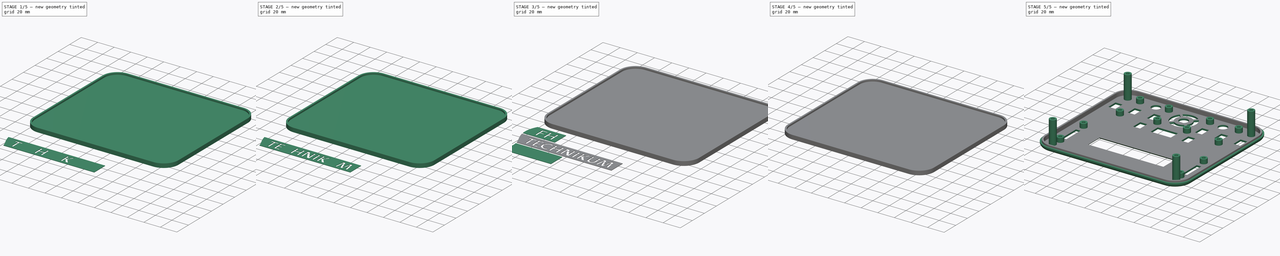
[diagram: build sequence overview — one tinted view per stage of 5, left to right]
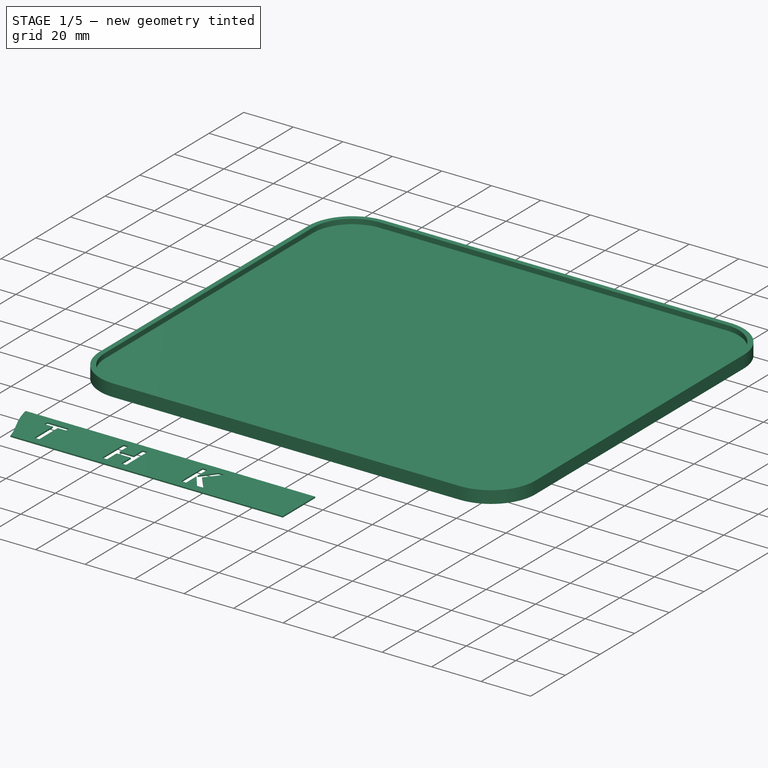
[diagram: stage 1 of 5 — iso view after this stage's code; geometry added in this stage tinted green]
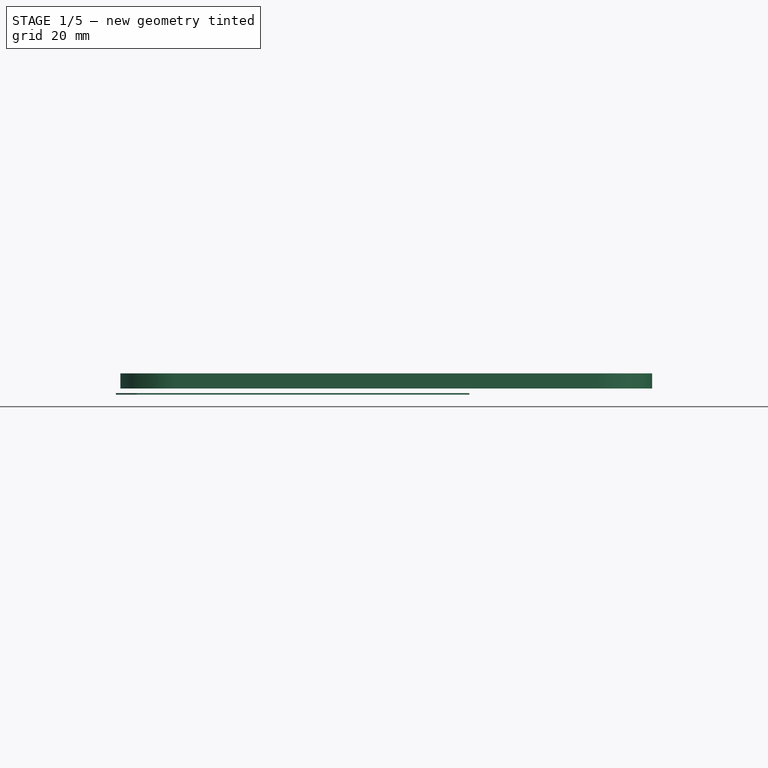
[diagram: stage 1 of 5 — front view after this stage's code; geometry added in this stage tinted green]
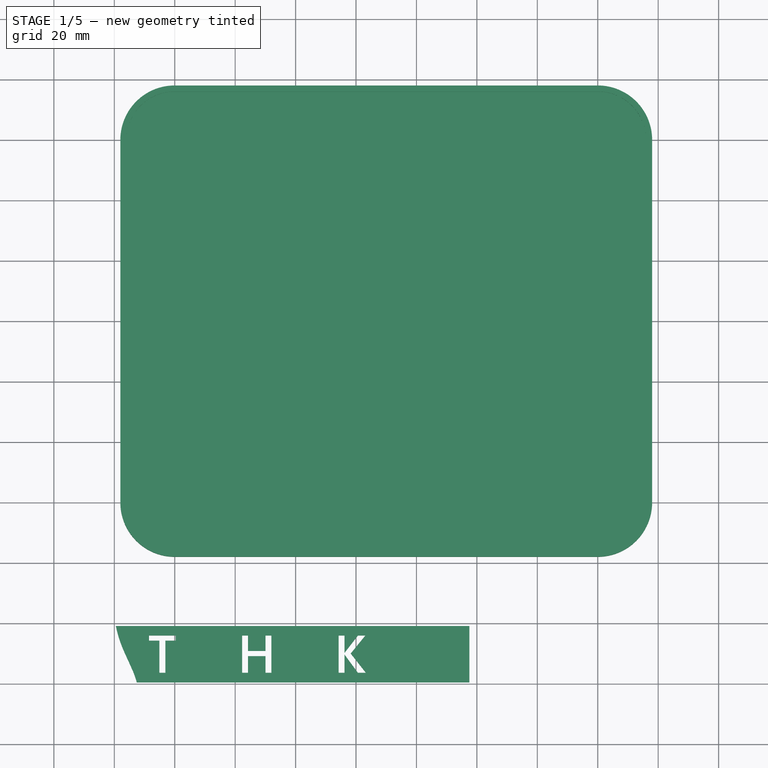
[diagram: stage 1 of 5 — top view after this stage's code; geometry added in this stage tinted green]
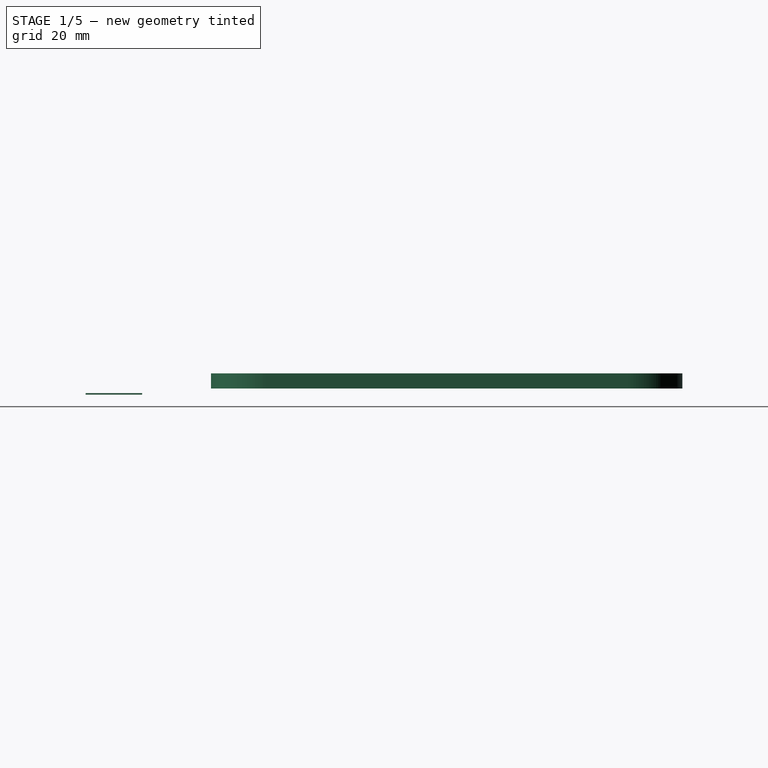
[diagram: stage 1 of 5 — right view after this stage's code; geometry added in this stage tinted green]
FCSTD DOCUMENT  (FreeCAD 0.16R6706 (Git))
Label: Case_Top_2
License: All rights reserved
LicenseURL: http://en.wikipedia.org/wiki/All_rights_reserved
objects: Part::Feature×18, Part::Extrusion×18, Part::Cut×17, Sketcher::SketchObject×5, PartDesign::Pad×5, PartDesign::Fillet×3, Part::MultiFuse×3, Part::FeaturePython×1, PartDesign::Chamfer×1
note: 76 computed .brp shape members not serialized (recipe doc carries the construction recipe); baked Part::Feature solids carry a one-line shape summary decoded from their .brp

FEATURE [Sketcher::SketchObject] Sketch001
  Placement = pos=(0,0,2) rot=(0,0,1;0rad)
  sketch-geometry (4):
    g0: LineSegment StartX=2 StartY=2 StartZ=0 EndX=178 EndY=2 EndZ=0
    g1: LineSegment StartX=178 StartY=2 StartZ=0 EndX=178 EndY=158 EndZ=0
    g2: LineSegment StartX=178 StartY=158 StartZ=0 EndX=2 EndY=158 EndZ=0
    g3: LineSegment StartX=2 StartY=158 StartZ=0 EndX=2 EndY=2 EndZ=0
  constraints (12):
    c: Coincident(g0,g1)
    c: Coincident(g1,g2)
    c: Coincident(g2,g3)
    c: Coincident(g3,g0)
    c: Horizontal(g0)
    c: Horizontal(g2)
    c: Vertical(g1)
    c: Vertical(g3)
    c: DistanceX(g-1,g0) = 2
    c: DistanceY(g-1,g0) = 2
    c: DistanceX(g-1,g0) = 178
    c: DistanceY(g-1,g2) = 158
FEATURE [PartDesign::Pad] Pad001
  Length = 3
  Length2 = 100
  Placement = pos=(0,0,2) rot=(0,0,1;0rad)
  Sketch = -> Sketch001
  Type = 0
FEATURE [Part::Extrusion] Extrude001
  Base = -> Path003
  Dir = (0,0,0.5)
  Solid = false
FEATURE [Part::Extrusion] Extrude009
  Base = -> Path011
  Dir = (0,0,0.5)
  Solid = false
FEATURE [Part::Extrusion] Extrude010
  Base = -> Path012
  Dir = (0,0,0.5)
  Solid = false
FEATURE [Part::Extrusion] Extrude013
  Base = -> Path015
  Dir = (0,0,0.5)
  Solid = false
FEATURE [Part::Cut] Cut007
  Base = -> Extrude001
  Tool = -> Extrude013
FEATURE [Part::Cut] Cut008
  Base = -> Cut007
  Tool = -> Extrude009
FEATURE [Part::Cut] Cut009
  Base = -> Cut008
  Tool = -> Extrude010
FEATURE [PartDesign::Fillet] Fillet002
  Base = -> Pad001 [Edge1,Edge2,Edge5,Edge8]
  Placement = pos=(0,0,2) rot=(0,0,1;0rad)
  Radius = 18
FEATURE [Sketcher::SketchObject] Sketch004
  Placement = pos=(0,0,2) rot=(0,0,1;0rad)
  sketch-geometry (16):
    g0: LineSegment StartX=2 StartY=140 StartZ=0 EndX=2 EndY=20 EndZ=0
    g1: LineSegment StartX=20 StartY=2 StartZ=0 EndX=160 EndY=2 EndZ=0
    g2: LineSegment StartX=178 StartY=20 StartZ=0 EndX=178 EndY=140 EndZ=0
    g3: LineSegment StartX=160 StartY=158 StartZ=0 EndX=20 EndY=158 EndZ=0
    g4: LineSegment StartX=20 StartY=156 StartZ=0 EndX=160 EndY=156 EndZ=0
    g5: LineSegment StartX=176 StartY=140 StartZ=0 EndX=176 EndY=20 EndZ=0
    g6: LineSegment StartX=160 StartY=4 StartZ=0 EndX=20 EndY=4 EndZ=0
    g7: LineSegment StartX=4 StartY=20 StartZ=0 EndX=4 EndY=140 EndZ=0
    g8: ArcOfCircle CenterX=20 CenterY=20 CenterZ=0 NormalX=0 NormalY=0 NormalZ=1 Radius=18 StartAngle=3.14159 EndAngle=4.71239
    g9: ArcOfCircle CenterX=20 CenterY=20 CenterZ=0 NormalX=0 NormalY=0 NormalZ=1 Radius=16 StartAngle=3.14159 EndAngle=4.71239
    g10: ArcOfCircle CenterX=20 CenterY=140 CenterZ=0 NormalX=0 NormalY=0 NormalZ=1 Radius=16 StartAngle=1.5708 EndAngle=3.14159
    g11: ArcOfCircle CenterX=20 CenterY=140 CenterZ=0 NormalX=0 NormalY=0 NormalZ=1 Radius=18 StartAngle=1.5708 EndAngle=3.14159
    g12: ArcOfCircle CenterX=160 CenterY=140 CenterZ=0 NormalX=0 NormalY=0 NormalZ=1 Radius=16 StartAngle=0 EndAngle=1.5708
    g13: ArcOfCircle CenterX=160 CenterY=140 CenterZ=0 NormalX=0 NormalY=0 NormalZ=1 Radius=18 StartAngle=0 EndAngle=1.5708
    g14: ArcOfCircle CenterX=160 CenterY=20 CenterZ=0 NormalX=0 NormalY=0 NormalZ=1 Radius=18 StartAngle=4.71239 EndAngle=6.28319
    g15: ArcOfCircle CenterX=160 CenterY=20 CenterZ=0 NormalX=0 NormalY=0 NormalZ=1 Radius=16 StartAngle=4.71239 EndAngle=6.28319
  constraints (56):
    c: Vertical(g0)
    c: Horizontal(g1)
    c: Vertical(g2)
    c: Horizontal(g3)
    c: Horizontal(g4)
    c: Vertical(g5)
    c: Horizontal(g6)
    c: Vertical(g7)
    c: DistanceY(g-1,g0) = 20
    c: DistanceY(g-1,g7) = 20
    c: DistanceX(g-1,g6) = 20
    c: DistanceX(g-1,g1) = 20
    c: DistanceY(g-1,g1) = 2
    c: DistanceY(g-1,g6) = 4
    c: DistanceX(g-1,g0) = 2
    c: DistanceX(g-1,g7) = 4
    c: Coincident(g8,g0)
    c: Coincident(g8,g1)
    c: Radius(g8) = 18
    c: Coincident(g9,g7)
    c: Coincident(g9,g6)
    c: Radius(g9) = 16
    c: DistanceX(g-1,g6) = 160
    c: DistanceX(g-1,g1) = 160
    c: DistanceX(g-1,g3) = 160
    c: DistanceX(g-1,g4) = 160
    c: DistanceX(g-1,g3) = 20
    c: DistanceX(g-1,g4) = 20
    c: DistanceY(g-1,g0) = 140
    c: DistanceY(g-1,g7) = 140
    c: DistanceY(g-1,g5) = 20
    c: DistanceY(g-1,g2) = 20
    c: DistanceX(g-1,g5) = 176
    c: DistanceX(g-1,g2) = 178
    c: DistanceY(g-1,g5) = 140
    c: DistanceY(g-1,g2) = 140
    c: DistanceY(g-1,g3) = 158
    c: DistanceY(g-1,g4) = 156
    c: Coincident(g10,g7)
    c: Coincident(g10,g4)
    c: Radius(g10) = 16
    c: Coincident(g11,g0)
    c: Coincident(g11,g3)
    c: Radius(g11) = 18
    c: Coincident(g12,g4)
    c: Coincident(g12,g5)
    c: Radius(g12) = 16
    c: Coincident(g13,g3)
    c: Coincident(g13,g2)
    c: Radius(g13) = 18
    c: Coincident(g14,g1)
    c: Coincident(g14,g2)
    c: Radius(g14) = 18
    c: Coincident(g15,g6)
    c: Coincident(g15,g5)
    c: Radius(g15) = 16
FEATURE [PartDesign::Pad] Pad004
  Length = 5
  Length2 = 100
  Placement = pos=(0,0,2) rot=(0,0,1;0rad)
  Sketch = -> Sketch004
  Type = 0
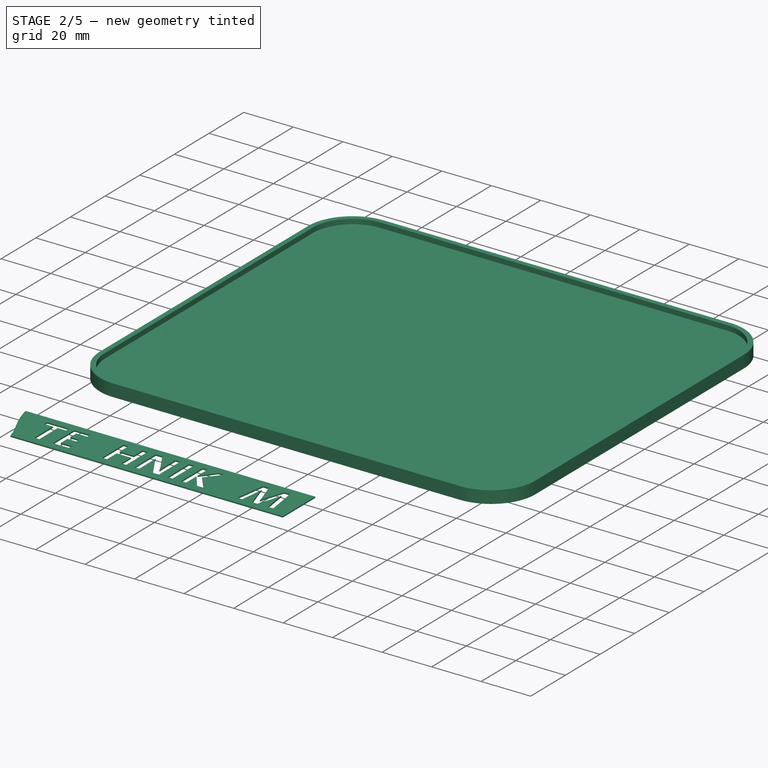
[diagram: stage 2 of 5 — iso view after this stage's code; geometry added in this stage tinted green]
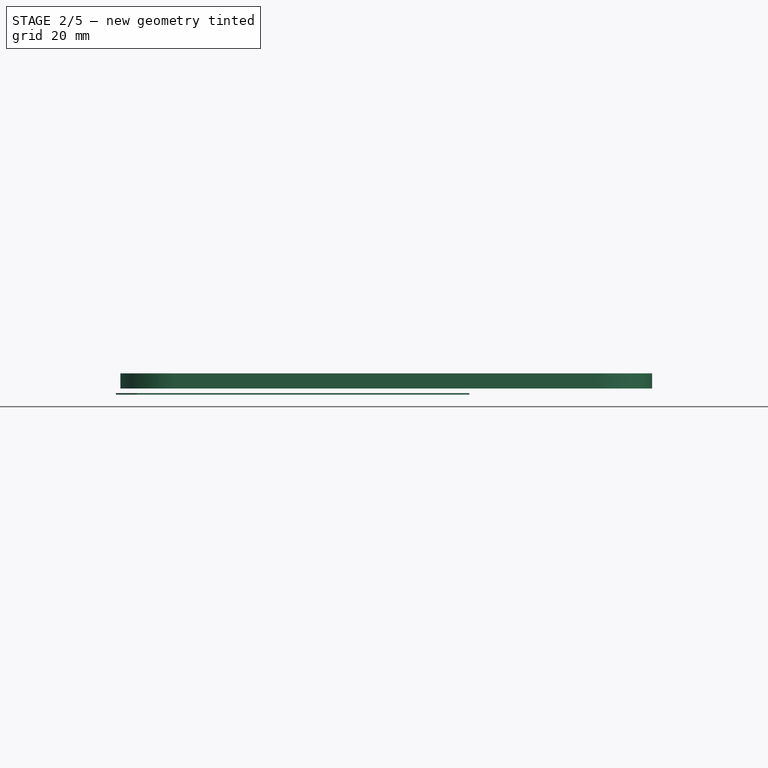
[diagram: stage 2 of 5 — front view after this stage's code; geometry added in this stage tinted green]
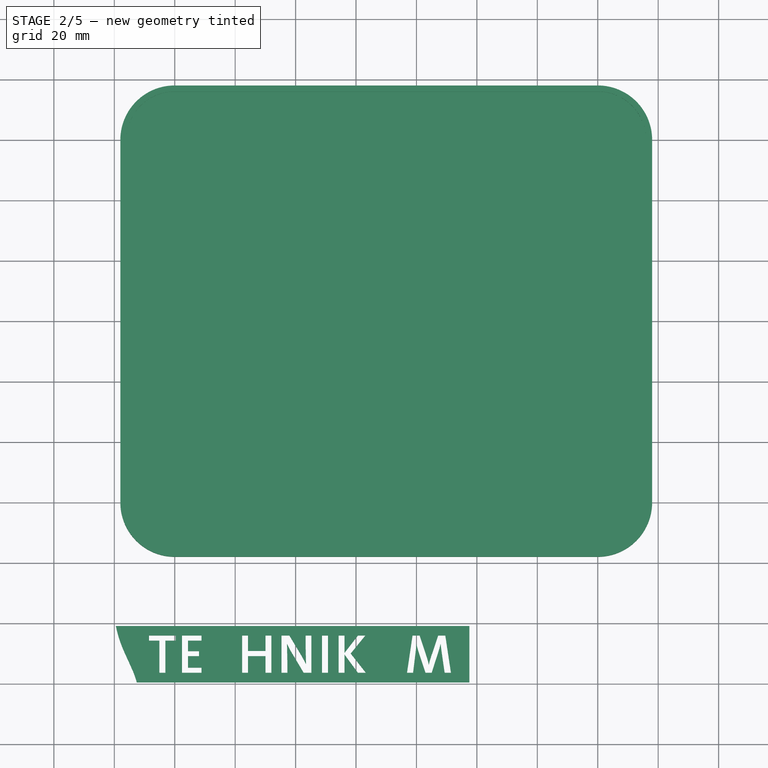
[diagram: stage 2 of 5 — top view after this stage's code; geometry added in this stage tinted green]
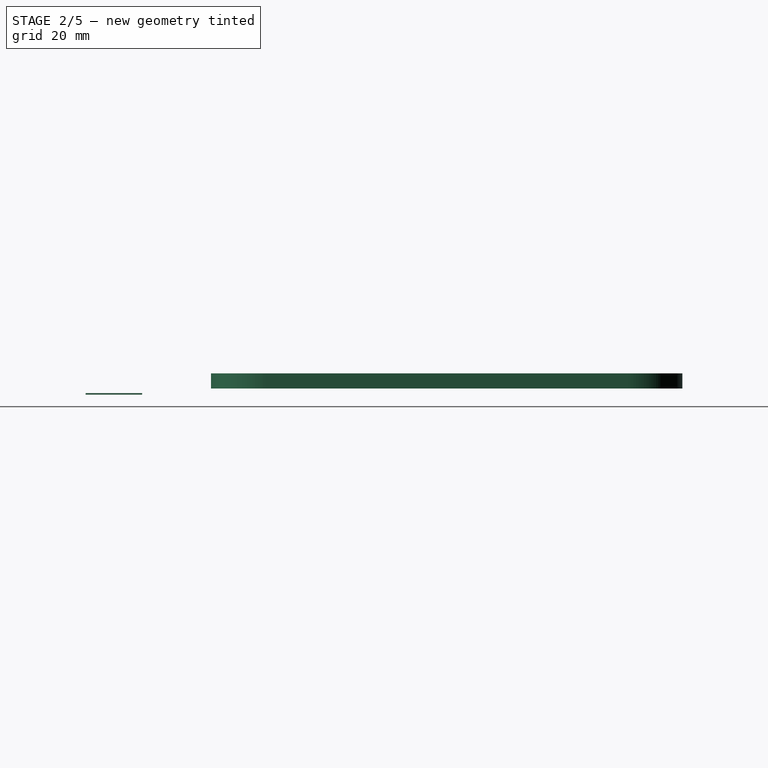
[diagram: stage 2 of 5 — right view after this stage's code; geometry added in this stage tinted green]
FEATURE [Part::Extrusion] Extrude011
  Base = -> Path013
  Dir = (0,0,0.5)
  Solid = false
FEATURE [Part::Extrusion] Extrude012
  Base = -> Path014
  Dir = (0,0,0.5)
  Solid = false
FEATURE [Part::Extrusion] Extrude014
  Base = -> Path016
  Dir = (0,0,0.5)
  Solid = false
FEATURE [Part::Extrusion] Extrude015
  Base = -> Path017
  Dir = (0,0,0.5)
  Solid = false
FEATURE [Part::Extrusion] Extrude016
  Base = -> Path018
  Dir = (0,0,0.5)
  Solid = false
FEATURE [Part::Cut] Cut010
  Base = -> Cut009
  Tool = -> Extrude011
FEATURE [Part::Cut] Cut011
  Base = -> Cut010
  Tool = -> Extrude012
FEATURE [Part::Cut] Cut012
  Base = -> Cut011
  Tool = -> Extrude014
FEATURE [Part::Cut] Cut013
  Base = -> Cut012
  Tool = -> Extrude015
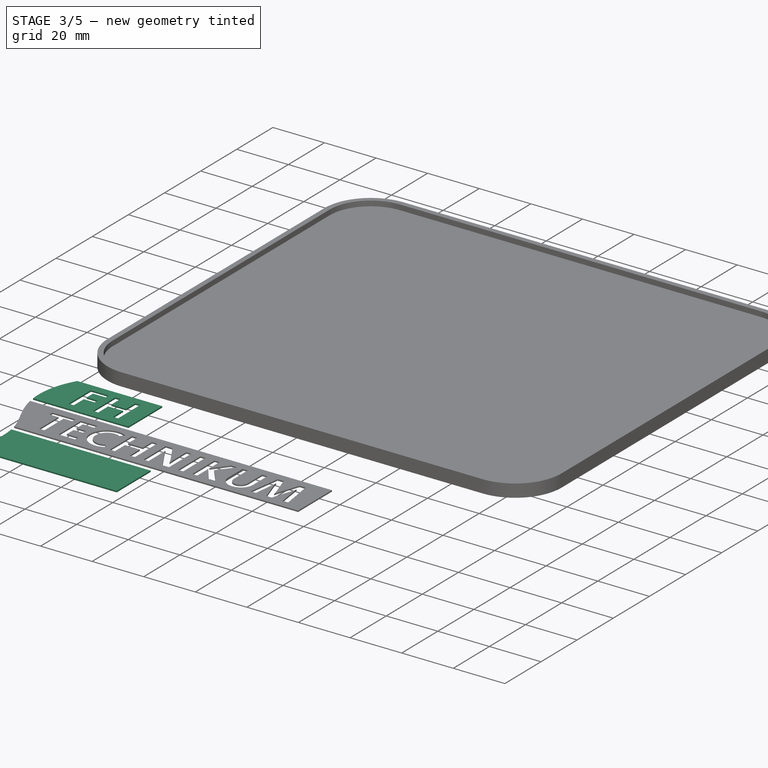
[diagram: stage 3 of 5 — iso view after this stage's code; geometry added in this stage tinted green]
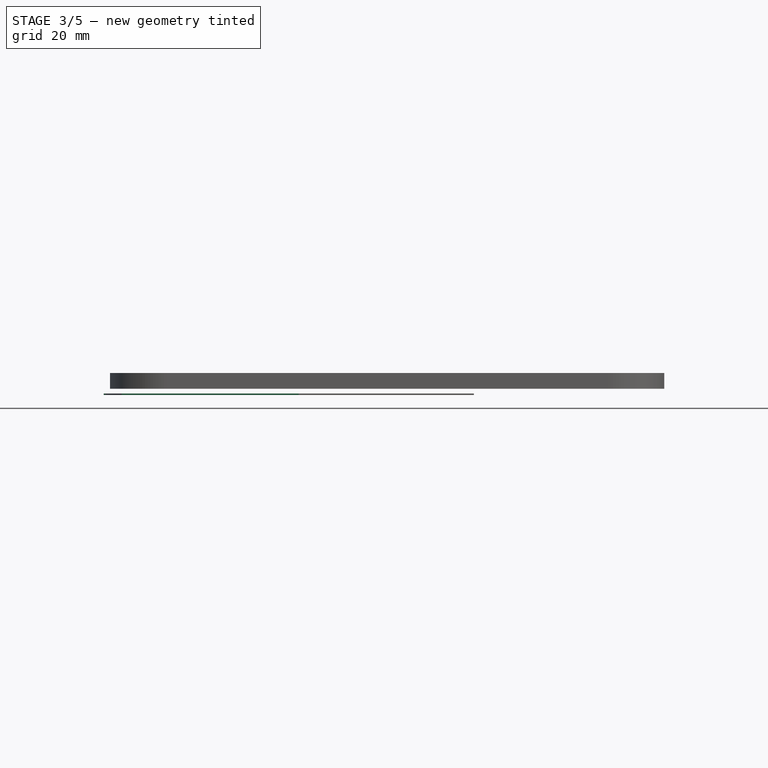
[diagram: stage 3 of 5 — front view after this stage's code; geometry added in this stage tinted green]
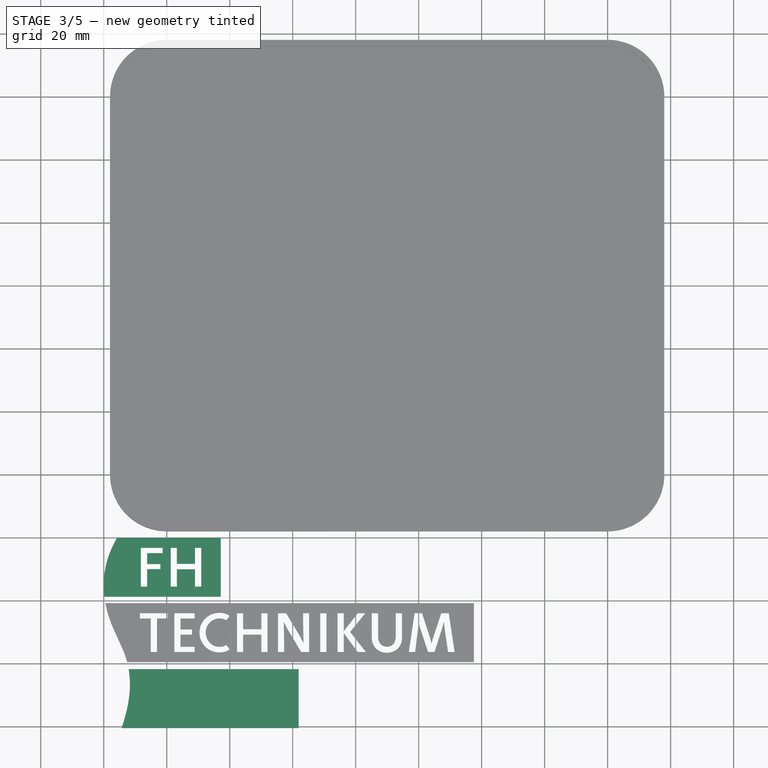
[diagram: stage 3 of 5 — top view after this stage's code; geometry added in this stage tinted green]
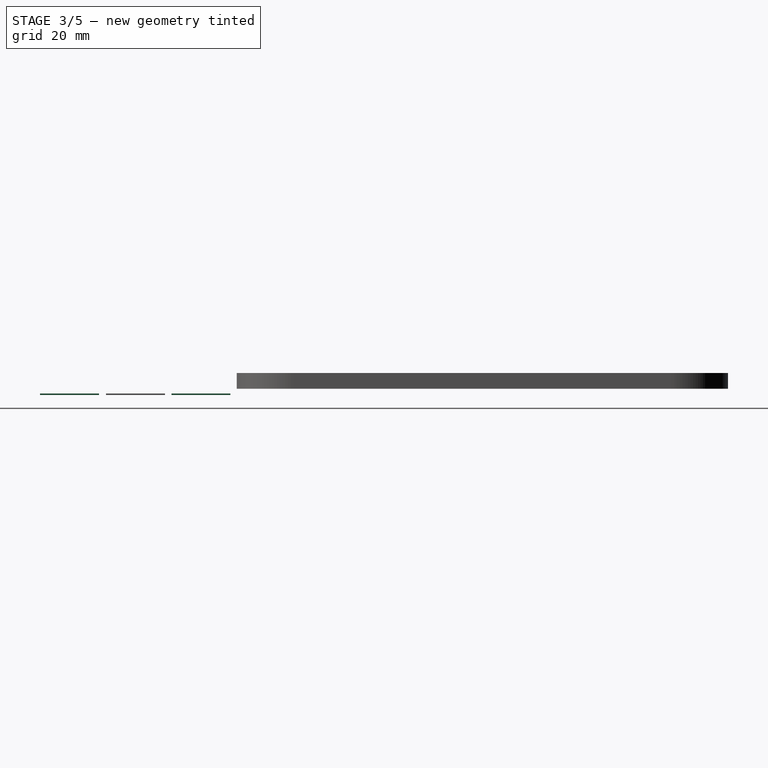
[diagram: stage 3 of 5 — right view after this stage's code; geometry added in this stage tinted green]
FEATURE [Part::Feature] Path002
  shape: bbox 37.64 x 18.73 x 6.236e-07 mm, 1 faces, 0 solids (baked)
FEATURE [Part::Feature] Path003
  shape: bbox 117 x 18.73 x 6.236e-07 mm, 1 faces, 0 solids (baked)
FEATURE [Part::Feature] Path004
  shape: bbox 56.24 x 18.73 x 6.236e-07 mm, 1 faces, 0 solids (baked)
FEATURE [Part::Feature] Path005
  shape: bbox 16.13 x 12.33 x 6.236e-07 mm, 1 faces, 0 solids (baked)
FEATURE [Part::Feature] Path006
  shape: bbox 1.971 x 12.33 x 6.236e-07 mm, 1 faces, 0 solids (baked)
FEATURE [Part::Feature] Path007
  shape: bbox 6.437 x 12.33 x 6.236e-07 mm, 1 faces, 0 solids (baked)
FEATURE [Part::Feature] Path008
  shape: bbox 9.89 x 12.33 x 6.236e-07 mm, 1 faces, 0 solids (baked)
FEATURE [Part::Feature] Path009
  shape: bbox 6.894 x 12.33 x 6.236e-07 mm, 1 faces, 0 solids (baked)
FEATURE [Part::Feature] Path010
  shape: bbox 9.691 x 12.33 x 6.236e-07 mm, 1 faces, 0 solids (baked)
FEATURE [Part::Feature] Path011
  shape: bbox 8.823 x 12.33 x 6.236e-07 mm, 1 faces, 0 solids (baked)
FEATURE [Part::Feature] Path012
  shape: bbox 9.691 x 12.33 x 6.236e-07 mm, 1 faces, 0 solids (baked)
FEATURE [Part::Feature] Path013
  shape: bbox 9.89 x 12.33 x 6.236e-07 mm, 1 faces, 0 solids (baked)
FEATURE [Part::Feature] Path014
  shape: bbox 1.969 x 12.33 x 6.236e-07 mm, 1 faces, 0 solids (baked)
FEATURE [Part::Feature] Path015
  shape: bbox 9.022 x 12.33 x 6.236e-07 mm, 1 faces, 0 solids (baked)
FEATURE [Part::Feature] Path016
  shape: bbox 14.54 x 12.33 x 6.236e-07 mm, 1 faces, 0 solids (baked)
FEATURE [Part::Feature] Path017
  shape: bbox 6.437 x 12.33 x 6.236e-07 mm, 1 faces, 0 solids (baked)
FEATURE [Part::Feature] Path018
  shape: bbox 9.6 x 12.56 x 6.236e-07 mm, 1 faces, 0 solids (baked)
FEATURE [Part::Feature] Path019
  shape: bbox 9.706 x 12.59 x 6.236e-07 mm, 1 faces, 0 solids (baked)
FEATURE [Part::Extrusion] Extrude
  Base = -> Path002
  Dir = (0,0,0.5)
  Solid = false
FEATURE [Part::Extrusion] Extrude002
  Base = -> Path004
  Dir = (0,0,0.5)
  Solid = false
FEATURE [Part::Extrusion] Extrude003
  Base = -> Path005
  Dir = (0,0,0.5)
  Solid = false
FEATURE [Part::Extrusion] Extrude007
  Base = -> Path009
  Dir = (0,0,0.5)
  Solid = false
FEATURE [Part::Extrusion] Extrude008
  Base = -> Path010
  Dir = (0,0,0.5)
  Solid = false
FEATURE [Part::Extrusion] Extrude017
  Base = -> Path019
  Dir = (0,0,0.5)
  Solid = false
FEATURE [Part::Cut] Cut002
  Base = -> Extrude
  Tool = -> Extrude008
FEATURE [Part::Cut] Cut006
  Base = -> Cut002
  Tool = -> Extrude007
FEATURE [Part::Cut] Cut014
  Base = -> Cut013
  Tool = -> Extrude016
FEATURE [Part::Cut] Cut015
  Base = -> Cut014
  Tool = -> Extrude017
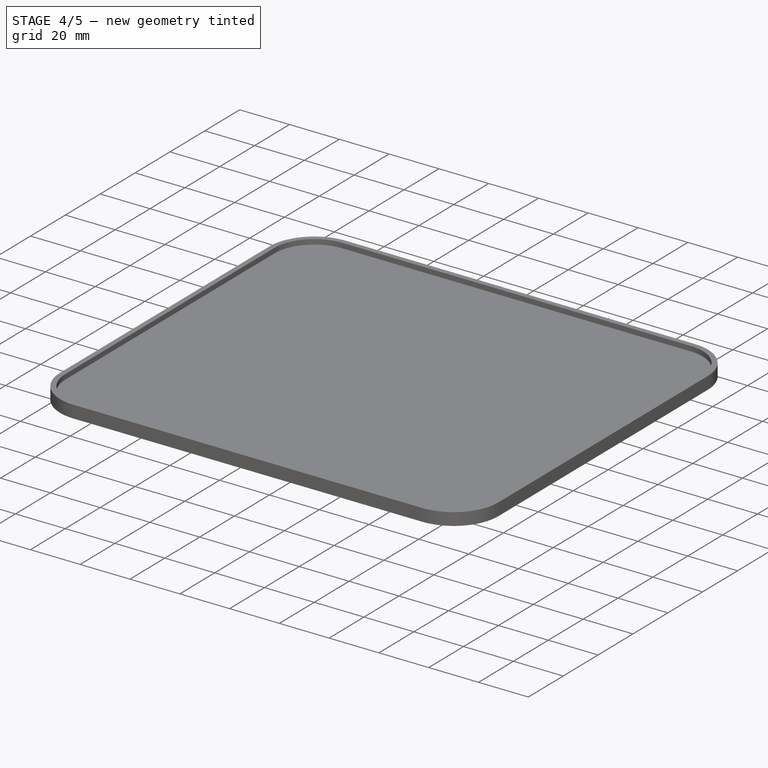
[diagram: stage 4 of 5 — iso view after this stage's code; geometry added in this stage tinted green]
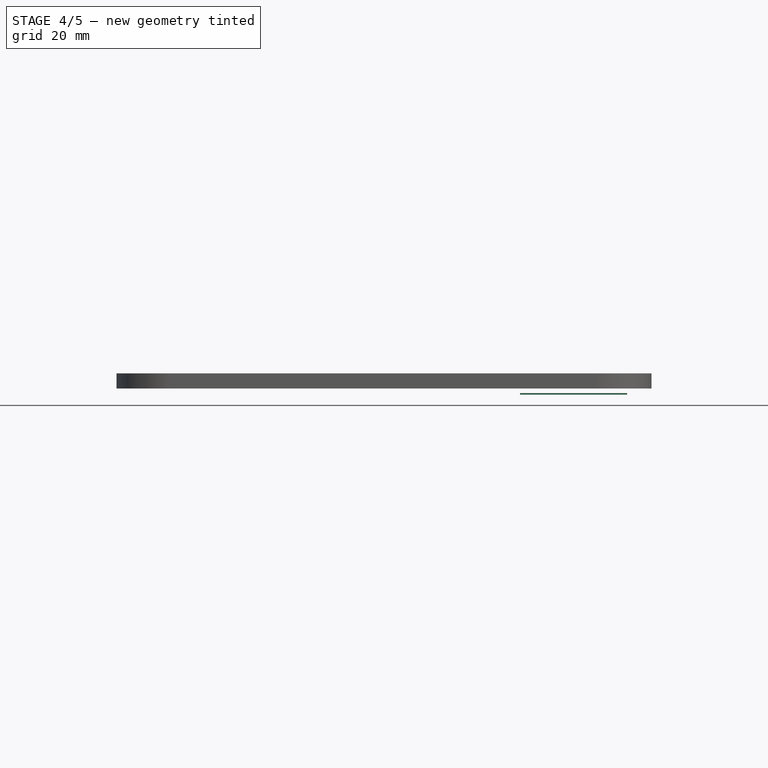
[diagram: stage 4 of 5 — front view after this stage's code; geometry added in this stage tinted green]
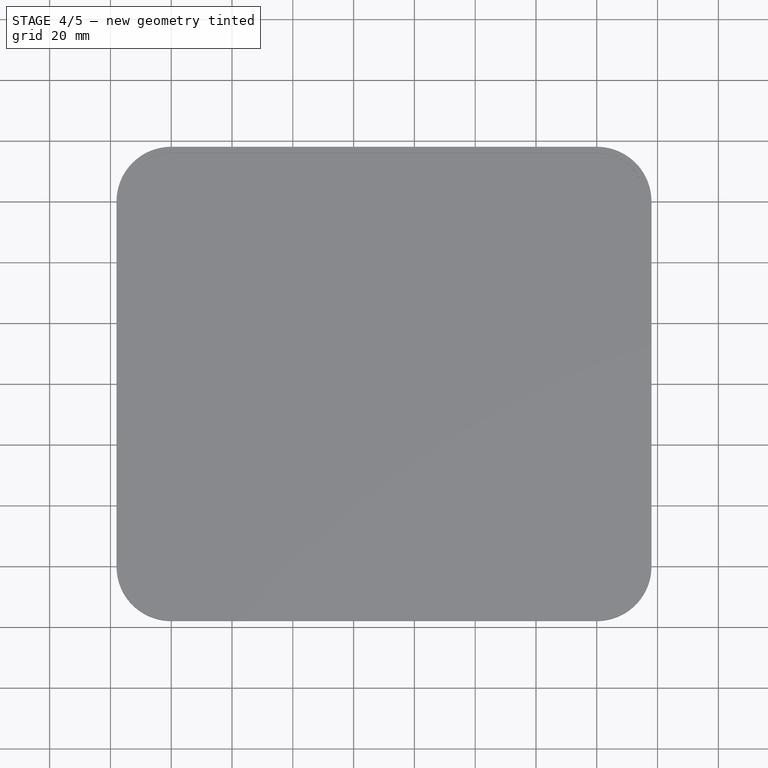
[diagram: stage 4 of 5 — top view after this stage's code; geometry added in this stage tinted green]
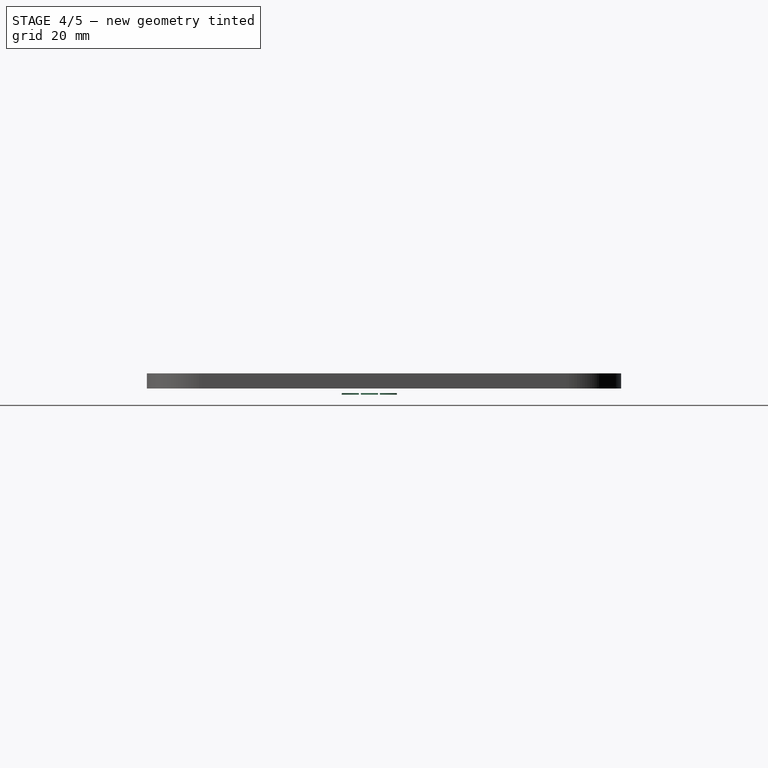
[diagram: stage 4 of 5 — right view after this stage's code; geometry added in this stage tinted green]
FEATURE [Part::Extrusion] Extrude004
  Base = -> Path006
  Dir = (0,0,0.5)
  Solid = false
FEATURE [Part::Extrusion] Extrude005
  Base = -> Path007
  Dir = (0,0,0.5)
  Solid = false
FEATURE [Part::Extrusion] Extrude006
  Base = -> Path008
  Dir = (0,0,0.5)
  Solid = false
FEATURE [Part::Cut] Cut001
  Base = -> Extrude002
  Tool = -> Extrude003
FEATURE [Part::Cut] Cut003
  Base = -> Cut001
  Tool = -> Extrude004
FEATURE [Part::Cut] Cut004
  Base = -> Cut003
  Tool = -> Extrude005
FEATURE [Part::Cut] Cut005
  Base = -> Cut004
  Tool = -> Extrude006
FEATURE [Part::MultiFuse] Fusion001  label="FH_Logo"
  Shapes = -> [Cut015,Cut005,Cut006]
FEATURE [Part::FeaturePython] Clone  label="Clone of FH_Logo"  # Draft clone (typed FeaturePython)
  Objects = -> [Fusion001]
  Placement = pos=(170,84.25,0.49) rot=(0,1,0;3.14159rad)
  Scale = (0.3,0.3,1)
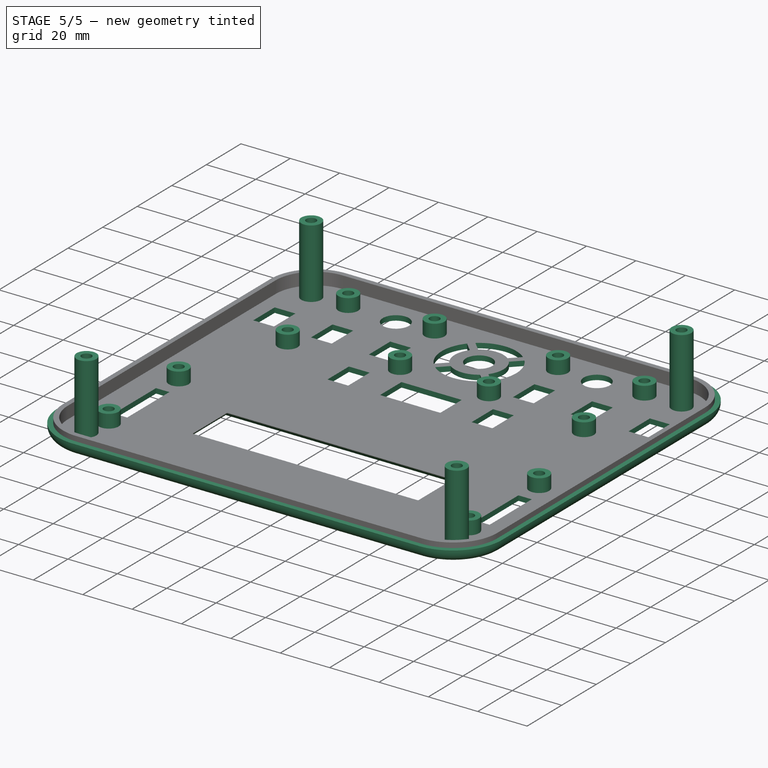
[diagram: stage 5 of 5 — iso view after this stage's code; geometry added in this stage tinted green]
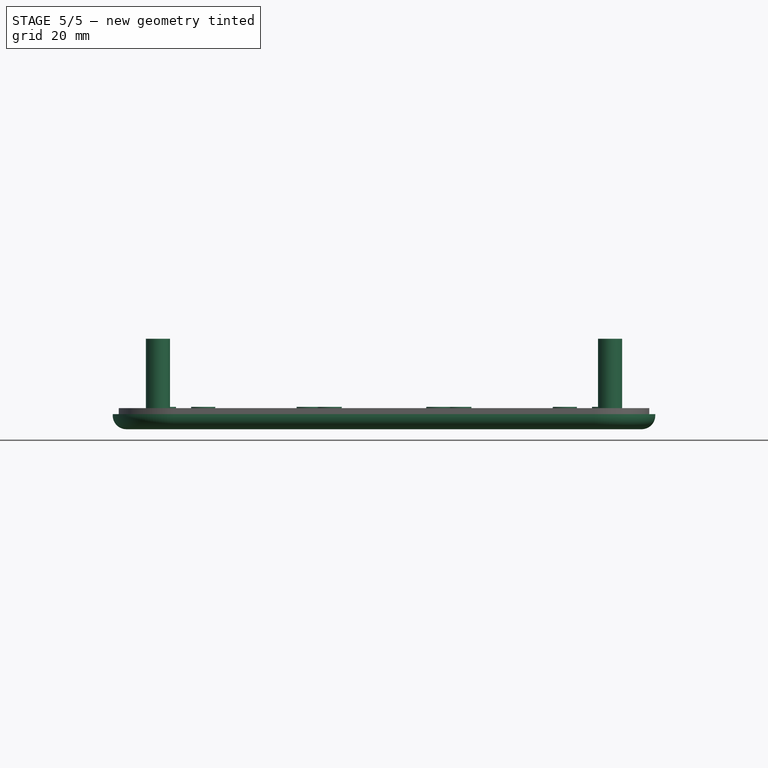
[diagram: stage 5 of 5 — front view after this stage's code; geometry added in this stage tinted green]
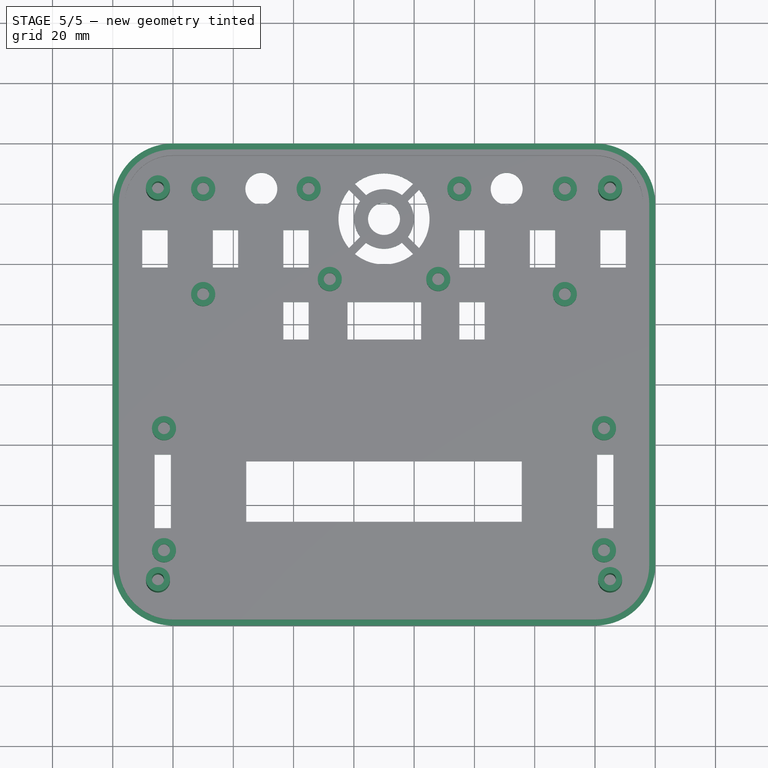
[diagram: stage 5 of 5 — top view after this stage's code; geometry added in this stage tinted green]
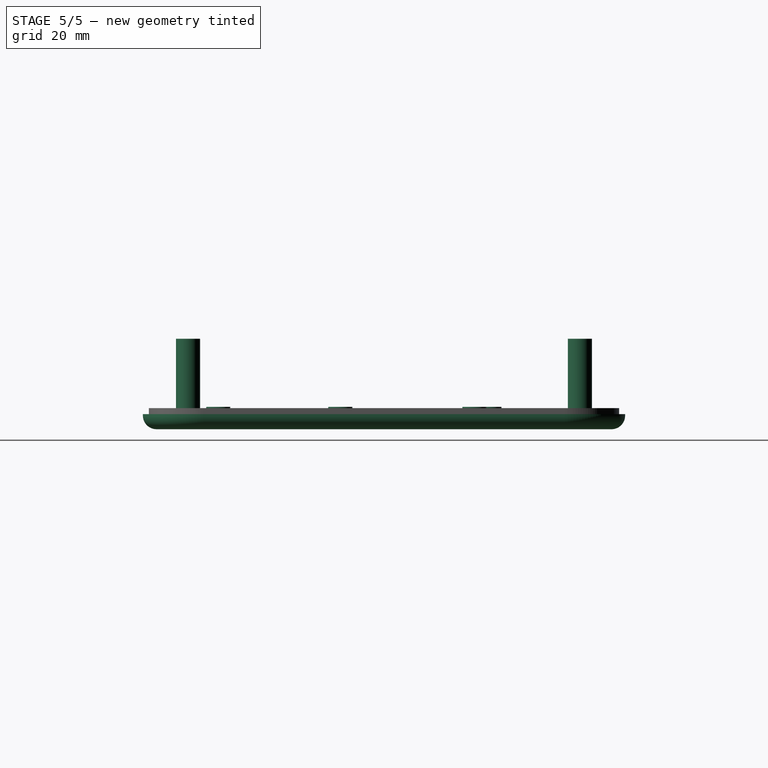
[diagram: stage 5 of 5 — right view after this stage's code; geometry added in this stage tinted green]
FEATURE [Sketcher::SketchObject] Sketch
  sketch-geometry (71):
    g0: LineSegment StartX=0 StartY=0 StartZ=0 EndX=180 EndY=0 EndZ=0
    g1: LineSegment StartX=180 StartY=0 StartZ=0 EndX=180 EndY=160 EndZ=0
    g2: LineSegment StartX=180 StartY=160 StartZ=0 EndX=0 EndY=160 EndZ=0
    g3: LineSegment StartX=0 StartY=160 StartZ=0 EndX=0 EndY=0 EndZ=0
    g4: LineSegment StartX=44.304 StartY=54.5 StartZ=0 EndX=135.696 EndY=54.5 EndZ=0
    g5: LineSegment StartX=135.696 StartY=54.5 StartZ=0 EndX=135.696 EndY=34.5 EndZ=0
    g6: LineSegment StartX=135.696 StartY=34.5 StartZ=0 EndX=44.304 EndY=34.5 EndZ=0
    g7: LineSegment StartX=44.304 StartY=34.5 StartZ=0 EndX=44.304 EndY=54.5 EndZ=0
    g8: Circle CenterX=90 CenterY=135 CenterZ=0 NormalX=0 NormalY=0 NormalZ=1 Radius=5.3
    g9: LineSegment StartX=77.9 StartY=107.4 StartZ=0 EndX=102.3 EndY=107.4 EndZ=0
    g10: LineSegment StartX=102.3 StartY=107.4 StartZ=0 EndX=102.3 EndY=95 EndZ=0
    g11: LineSegment StartX=102.3 StartY=95 StartZ=0 EndX=77.9 EndY=95 EndZ=0
    g12: LineSegment StartX=77.9 StartY=95 StartZ=0 EndX=77.9 EndY=107.4 EndZ=0
    g13: LineSegment StartX=115 StartY=107.4 StartZ=0 EndX=123.4 EndY=107.4 EndZ=0
    g14: LineSegment StartX=123.4 StartY=107.4 StartZ=0 EndX=123.4 EndY=95 EndZ=0
    g15: LineSegment StartX=123.4 StartY=95 StartZ=0 EndX=115 EndY=95 EndZ=0
    g16: LineSegment StartX=115 StartY=95 StartZ=0 EndX=115 EndY=107.4 EndZ=0
    g17: LineSegment StartX=65 StartY=95 StartZ=0 EndX=56.6 EndY=95 EndZ=0
    g18: LineSegment StartX=56.6 StartY=95 StartZ=0 EndX=56.6 EndY=107.4 EndZ=0
    g19: LineSegment StartX=56.6 StartY=107.4 StartZ=0 EndX=65 EndY=107.4 EndZ=0
    g20: LineSegment StartX=65 StartY=107.4 StartZ=0 EndX=65 EndY=95 EndZ=0
    g21: LineSegment StartX=95.9401 StartY=142.92 StartZ=0 EndX=99.6414 EndY=146.621 EndZ=0
    g22: LineSegment StartX=84.0599 StartY=142.92 StartZ=0 EndX=80.3586 EndY=146.621 EndZ=0
    g23: ArcOfCircle CenterX=90 CenterY=135 CenterZ=0 NormalX=0 NormalY=0 NormalZ=1 Radius=9.9 StartAngle=0.927288 EndAngle=2.2143
    g24: ArcOfCircle CenterX=90 CenterY=135 CenterZ=0 NormalX=0 NormalY=0 NormalZ=1 Radius=15.1 StartAngle=0.878247 EndAngle=2.26335
    g25: LineSegment StartX=101.621 StartY=144.641 StartZ=0 EndX=97.92 EndY=140.94 EndZ=0
    g26: LineSegment StartX=97.92 StartY=129.06 StartZ=0 EndX=101.621 EndY=125.359 EndZ=0
    g27: ArcOfCircle CenterX=90 CenterY=135 CenterZ=0 NormalX=0 NormalY=0 NormalZ=1 Radius=9.9 StartAngle=5.63968 EndAngle=6.92669
    g28: ArcOfCircle CenterX=90 CenterY=135 CenterZ=0 NormalX=0 NormalY=0 NormalZ=1 Radius=15.1 StartAngle=5.59064 EndAngle=6.97574
    g29: LineSegment StartX=84.06 StartY=127.08 StartZ=0 EndX=80.3586 EndY=123.379 EndZ=0
    g30: LineSegment StartX=95.9401 StartY=127.08 StartZ=0 EndX=99.6414 EndY=123.379 EndZ=0
    g31: ArcOfCircle CenterX=90 CenterY=135 CenterZ=0 NormalX=0 NormalY=0 NormalZ=1 Radius=9.9 StartAngle=4.06888 EndAngle=5.3559
    g32: ArcOfCircle CenterX=90 CenterY=135 CenterZ=0 NormalX=0 NormalY=0 NormalZ=1 Radius=15.1 StartAngle=4.01984 EndAngle=5.40494
    g33: LineSegment StartX=82.08 StartY=129.06 StartZ=0 EndX=78.3787 EndY=125.359 EndZ=0
    g34: LineSegment StartX=78.3787 StartY=144.641 StartZ=0 EndX=82.08 EndY=140.94 EndZ=0
    g35: ArcOfCircle CenterX=90 CenterY=135 CenterZ=0 NormalX=0 NormalY=0 NormalZ=1 Radius=9.9 StartAngle=2.49808 EndAngle=3.7851
    g36: ArcOfCircle CenterX=90 CenterY=135 CenterZ=0 NormalX=0 NormalY=0 NormalZ=1 Radius=15.1 StartAngle=2.44904 EndAngle=3.83414
    g37: LineSegment StartX=56.6 StartY=131.3 StartZ=0 EndX=65 EndY=131.3 EndZ=0
    g38: LineSegment StartX=65 StartY=131.3 StartZ=0 EndX=65 EndY=118.9 EndZ=0
    g39: LineSegment StartX=65 StartY=118.9 StartZ=0 EndX=56.6 EndY=118.9 EndZ=0
    g40: LineSegment StartX=56.6 StartY=118.9 StartZ=0 EndX=56.6 EndY=131.3 EndZ=0
    g41: LineSegment StartX=33.2 StartY=131.3 StartZ=0 EndX=41.6 EndY=131.3 EndZ=0
    g42: LineSegment StartX=41.6 StartY=131.3 StartZ=0 EndX=41.6 EndY=118.9 EndZ=0
    g43: LineSegment StartX=41.6 StartY=118.9 StartZ=0 EndX=33.2 EndY=118.9 EndZ=0
    g44: LineSegment StartX=33.2 StartY=118.9 StartZ=0 EndX=33.2 EndY=131.3 EndZ=0
    g45: LineSegment StartX=9.8 StartY=131.3 StartZ=0 EndX=18.2 EndY=131.3 EndZ=0
    g46: LineSegment StartX=18.2 StartY=131.3 StartZ=0 EndX=18.2 EndY=118.9 EndZ=0
    g47: LineSegment StartX=18.2 StartY=118.9 StartZ=0 EndX=9.8 EndY=118.9 EndZ=0
    g48: LineSegment StartX=9.8 StartY=118.9 StartZ=0 EndX=9.8 EndY=131.3 EndZ=0
    g49: LineSegment StartX=115 StartY=131.3 StartZ=0 EndX=123.4 EndY=131.3 EndZ=0
    g50: LineSegment StartX=123.4 StartY=131.3 StartZ=0 EndX=123.4 EndY=118.9 EndZ=0
    g51: LineSegment StartX=123.4 StartY=118.9 StartZ=0 EndX=115 EndY=118.9 EndZ=0
    g52: LineSegment StartX=115 StartY=118.9 StartZ=0 EndX=115 EndY=131.3 EndZ=0
    g53: LineSegment StartX=138.4 StartY=131.3 StartZ=0 EndX=146.8 EndY=131.3 EndZ=0
    g54: LineSegment StartX=146.8 StartY=131.3 StartZ=0 EndX=146.8 EndY=118.9 EndZ=0
    g55: LineSegment StartX=146.8 StartY=118.9 StartZ=0 EndX=138.4 EndY=118.9 EndZ=0
    g56: LineSegment StartX=138.4 StartY=118.9 StartZ=0 EndX=138.4 EndY=131.3 EndZ=0
    g57: LineSegment StartX=161.8 StartY=131.3 StartZ=0 EndX=170.2 EndY=131.3 EndZ=0
    g58: LineSegment StartX=170.2 StartY=131.3 StartZ=0 EndX=170.2 EndY=118.9 EndZ=0
    g59: LineSegment StartX=170.2 StartY=118.9 StartZ=0 EndX=161.8 EndY=118.9 EndZ=0
    g60: LineSegment StartX=161.8 StartY=118.9 StartZ=0 EndX=161.8 EndY=131.3 EndZ=0
    g61: LineSegment StartX=160.696 StartY=56.8 StartZ=0 EndX=166.096 EndY=56.8 EndZ=0
    g62: LineSegment StartX=166.096 StartY=56.8 StartZ=0 EndX=166.096 EndY=32.4 EndZ=0
    g63: LineSegment StartX=166.096 StartY=32.4 StartZ=0 EndX=160.696 EndY=32.4 EndZ=0
    g64: LineSegment StartX=160.696 StartY=32.4 StartZ=0 EndX=160.696 EndY=56.8 EndZ=0
    g65: LineSegment StartX=13.904 StartY=56.8 StartZ=0 EndX=19.304 EndY=56.8 EndZ=0
    g66: LineSegment StartX=19.304 StartY=56.8 StartZ=0 EndX=19.304 EndY=32.4 EndZ=0
    g67: LineSegment StartX=19.304 StartY=32.4 StartZ=0 EndX=13.904 EndY=32.4 EndZ=0
    g68: LineSegment StartX=13.904 StartY=32.4 StartZ=0 EndX=13.904 EndY=56.8 EndZ=0
    g69: Circle CenterX=49.3 CenterY=145 CenterZ=0 NormalX=0 NormalY=0 NormalZ=1 Radius=5.3
    g70: Circle CenterX=130.7 CenterY=145 CenterZ=0 NormalX=0 NormalY=0 NormalZ=1 Radius=5.3
  constraints (208):
    c: Coincident(g0,g1)
    c: Coincident(g1,g2)
    c: Coincident(g2,g3)
    c: Coincident(g3,g0)
    c: Horizontal(g0)
    c: Horizontal(g2)
    c: Vertical(g1)
    c: Vertical(g3)
    c: Coincident(g0,g-1)
    c: DistanceX(g-1,g0) = 180
    c: DistanceY(g-1,g2) = 160
    c: Coincident(g4,g5)
    c: Coincident(g5,g6)
    c: Coincident(g6,g7)
    c: Coincident(g7,g4)
    c: Horizontal(g4)
    c: Horizontal(g6)
    c: Vertical(g5)
    c: Vertical(g7)
    c: DistanceY(g6,g4) = 20
    c: DistanceX(g4,g4) = 91.392
    c: DistanceX(g-1,g6) = 44.304
    c: DistanceY(g-1,g6) = 34.5
    c: Radius(g8) = 5.3
    c: Coincident(g9,g10)
    c: Coincident(g10,g11)
    c: Coincident(g11,g12)
    c: Coincident(g12,g9)
    c: Horizontal(g9)
    c: Horizontal(g11)
    c: Vertical(g10)
    c: Vertical(g12)
    c: DistanceX(g11,g10) = 24.4
    c: DistanceY(g10,g9) = 12.4
    c: DistanceX(g-1,g11) = 77.9
    c: DistanceX(g-1,g8) = 90
    c: Coincident(g13,g14)
    c: Coincident(g14,g15)
    c: Coincident(g15,g16)
    c: Coincident(g16,g13)
    c: Horizontal(g13)
    c: Horizontal(g15)
    c: Vertical(g14)
    c: Vertical(g16)
    c: Coincident(g17,g18)
    c: Coincident(g18,g19)
    c: Coincident(g19,g20)
    c: Coincident(g20,g17)
    c: Horizontal(g17)
    c: Horizontal(g19)
    c: Vertical(g18)
    c: Vertical(g20)
    c: DistanceY(g17,g18) = 12.4
    c: DistanceX(g17,g17) = 8.4
    c: DistanceY(g17,g11) = 0
    c: DistanceY(g14,g13) = 12.4
    c: DistanceX(g15,g14) = 8.4
    c: DistanceY(g15,g10) = 0
    c: Angle(g22) = 2.35619
    c: Angle(g21) = 0.785398
    c: Distance(g21,g8) = 9.9
    c: Distance(g8,g21) = 15.1
    c: Distance(g8,g22) = 9.9
    c: Distance(g8,g22) = 15.1
    c: Coincident(g23,g22)
    c: Coincident(g23,g21)
    c: Coincident(g24,g21)
    c: Coincident(g24,g22)
    c: Angle(g26) = -0.785398
    c: Angle(g25) = -2.35619
    c: Distance(g25,g8) = 9.9
    c: Distance(g8,g25) = 15.1
    c: Distance(g26,g8) = 9.9
    c: Distance(g8,g26) = 15.1
    c: Coincident(g27,g25)
    c: Coincident(g27,g26)
    c: Coincident(g28,g26)
    c: Coincident(g28,g25)
    c: Angle(g29) = -2.35619
    c: Distance(g29,g8) = 9.9
    c: Distance(g29,g8) = 15.1
    c: Angle(g30) = -0.785398
    c: Distance(g30,g8) = 9.9
    c: Distance(g8,g30) = 15.1
    c: Coincident(g31,g29)
    c: Coincident(g31,g30)
    c: Coincident(g32,g29)
    c: Coincident(g32,g30)
    c: Angle(g33) = -2.35619
    c: Distance(g33,g8) = 9.9
    c: Angle(g34) = -0.785398
    c: Distance(g34,g8) = 9.9
    c: Distance(g34,g8) = 15.1
    c: Coincident(g35,g34)
    c: Coincident(g35,g33)
    c: Coincident(g36,g34)
    c: Coincident(g36,g33)
    c: DistanceY(g-1,g8) = 135
    c: Coincident(g37,g38)
    c: Coincident(g38,g39)
    c: Coincident(g39,g40)
    c: Coincident(g40,g37)
    c: Horizontal(g37)
    c: Horizontal(g39)
    c: Vertical(g38)
    c: Vertical(g40)
    c: Coincident(g41,g42)
    c: Coincident(g42,g43)
    c: Coincident(g43,g44)
    c: Coincident(g44,g41)
    c: Horizontal(g41)
    c: Horizontal(g43)
    c: Vertical(g42)
    c: Vertical(g44)
    c: Coincident(g45,g46)
    c: Coincident(g46,g47)
    c: Coincident(g47,g48)
    c: Coincident(g48,g45)
    c: Horizontal(g45)
    c: Horizontal(g47)
    c: Vertical(g46)
    c: Vertical(g48)
    c: Coincident(g49,g50)
    c: Coincident(g50,g51)
    c: Coincident(g51,g52)
    c: Coincident(g52,g49)
    c: Horizontal(g49)
    c: Horizontal(g51)
    c: Vertical(g50)
    c: Vertical(g52)
    c: Coincident(g53,g54)
    c: Coincident(g54,g55)
    c: Coincident(g55,g56)
    c: Coincident(g56,g53)
    c: Horizontal(g53)
    c: Horizontal(g55)
    c: Vertical(g54)
    c: Vertical(g56)
    c: Coincident(g57,g58)
    c: Coincident(g58,g59)
    c: Coincident(g59,g60)
    c: Coincident(g60,g57)
    c: Horizontal(g57)
    c: Horizontal(g59)
    c: Vertical(g58)
    c: Vertical(g60)
    c: DistanceX(g39,g38) = 8.4
    c: DistanceX(g43,g42) = 8.4
    c: DistanceX(g47,g46) = 8.4
    c: DistanceY(g47,g45) = 12.4
    c: DistanceY(g43,g41) = 12.4
    c: DistanceY(g39,g37) = 12.4
    c: DistanceY(g-1,g47) = 118.9
    c: DistanceY(g-1,g39) = 118.9
    c: DistanceY(g-1,g43) = 118.9
    c: DistanceY(g-1,g51) = 118.9
    c: DistanceY(g-1,g55) = 118.9
    c: DistanceY(g-1,g59) = 118.9
    c: DistanceX(g51,g50) = 8.4
    c: DistanceX(g55,g54) = 8.4
    c: DistanceX(g59,g58) = 8.4
    c: DistanceY(g50,g49) = 12.4
    c: DistanceY(g54,g53) = 12.4
    c: DistanceY(g59,g57) = 12.4
    c: DistanceX(g37,g8) = 25
    c: DistanceX(g42,g39) = 15
    c: DistanceX(g46,g43) = 15
    c: DistanceX(g8,g51) = 25
    c: DistanceX(g50,g55) = 15
    c: DistanceX(g54,g59) = 15
    c: DistanceX(g38,g19) = 0
    c: DistanceX(g13,g51) = 0
    c: DistanceY(g-1,g11) = 95
    c: DistanceY(g8,g25) = 5.94006
    c: Distance(g25,g21) = 2.8
    c: Distance(g22,g34) = 2.8
    c: Distance(g26,g30) = 2.8
    c: Distance(g29,g33) = 2.80001
    c: Coincident(g61,g62)
    c: Coincident(g62,g63)
    c: Coincident(g63,g64)
    c: Coincident(g64,g61)
    c: Horizontal(g61)
    c: Horizontal(g63)
    c: Vertical(g62)
    c: Vertical(g64)
    c: DistanceX(g63,g62) = 5.4
    c: DistanceY(g63,g61) = 24.4
    c: DistanceY(g-1,g63) = 32.4
    c: Coincident(g65,g66)
    c: Coincident(g66,g67)
    c: Coincident(g67,g68)
    c: Coincident(g68,g65)
    c: Horizontal(g65)
    c: Horizontal(g67)
    c: Vertical(g66)
    c: Vertical(g68)
    c: DistanceX(g67,g66) = 5.4
    c: DistanceY(g67,g65) = 24.4
    c: DistanceY(g-1,g67) = 32.4
    c: DistanceX(g66,g6) = 25
    c: DistanceX(g5,g63) = 25
    c: Radius(g69) = 5.3
    c: DistanceX(g-1,g69) = 49.3
    c: DistanceY(g-1,g69) = 145
    c: DistanceX(g-1,g70) = 130.7
    c: Radius(g70) = 5.3
    c: DistanceY(g-1,g70) = 145
FEATURE [PartDesign::Pad] Pad
  Length = 5
  Length2 = 100
  Sketch = -> Sketch
  Type = 0
FEATURE [PartDesign::Fillet] Fillet
  Base = -> Pad [Edge1,Edge2,Edge5,Edge8]
  Radius = 20
FEATURE [PartDesign::Fillet] Fillet001
  Base = -> Fillet [Edge1,Edge5,Edge7,Edge9,Edge11,Edge10,Edge8,Edge6]
  Radius = 4.5
FEATURE [Sketcher::SketchObject] Sketch002
  Placement = pos=(0,0,2) rot=(0,0,1;0rad)
  sketch-geometry (8):
    g0: Circle CenterX=15 CenterY=15 CenterZ=0 NormalX=0 NormalY=0 NormalZ=1 Radius=4
    g1: Circle CenterX=15 CenterY=15 CenterZ=0 NormalX=0 NormalY=0 NormalZ=1 Radius=2
    g2: Circle CenterX=165 CenterY=15 CenterZ=0 NormalX=0 NormalY=0 NormalZ=1 Radius=4
    g3: Circle CenterX=165 CenterY=15 CenterZ=0 NormalX=0 NormalY=0 NormalZ=1 Radius=2
    g4: Circle CenterX=165 CenterY=145 CenterZ=0 NormalX=0 NormalY=0 NormalZ=1 Radius=4
    g5: Circle CenterX=165 CenterY=145 CenterZ=0 NormalX=0 NormalY=0 NormalZ=1 Radius=2
    g6: Circle CenterX=15 CenterY=145 CenterZ=0 NormalX=0 NormalY=0 NormalZ=1 Radius=4
    g7: Circle CenterX=15 CenterY=145 CenterZ=0 NormalX=0 NormalY=0 NormalZ=1 Radius=2
  constraints (20):
    c: Radius(g0) = 4
    c: DistanceX(g-1,g0) = 15
    c: DistanceY(g-1,g0) = 15
    c: Coincident(g1,g0)
    c: Radius(g1) = 2
    c: Radius(g2) = 4
    c: DistanceX(g-1,g2) = 165
    c: DistanceY(g-1,g2) = 15
    c: Coincident(g3,g2)
    c: Radius(g3) = 2
    c: Radius(g4) = 4
    c: DistanceX(g-1,g4) = 165
    c: DistanceY(g-1,g4) = 145
    c: Coincident(g5,g4)
    c: Radius(g5) = 2
    c: Radius(g6) = 4
    c: DistanceY(g-1,g6) = 145
    c: DistanceX(g-1,g6) = 15
    c: Coincident(g7,g6)
    c: Radius(g7) = 2
FEATURE [PartDesign::Pad] Pad002
  Length = 28
  Length2 = 100
  Placement = pos=(0,0,2) rot=(0,0,1;0rad)
  Sketch = -> Sketch002
  Type = 0
FEATURE [Sketcher::SketchObject] Sketch003
  Placement = pos=(0,0,2) rot=(0,0,1;0rad)
  sketch-geometry (24):
    g0: Circle CenterX=30 CenterY=145 CenterZ=0 NormalX=0 NormalY=0 NormalZ=1 Radius=4
    g1: Circle CenterX=65 CenterY=145 CenterZ=0 NormalX=0 NormalY=0 NormalZ=1 Radius=4
    g2: Circle CenterX=72 CenterY=115 CenterZ=0 NormalX=0 NormalY=0 NormalZ=1 Radius=4
    g3: Circle CenterX=108 CenterY=115 CenterZ=0 NormalX=0 NormalY=0 NormalZ=1 Radius=4
    g4: Circle CenterX=115 CenterY=145 CenterZ=0 NormalX=0 NormalY=0 NormalZ=1 Radius=4
    g5: Circle CenterX=150 CenterY=110 CenterZ=0 NormalX=0 NormalY=0 NormalZ=1 Radius=4
    g6: Circle CenterX=150 CenterY=145 CenterZ=0 NormalX=0 NormalY=0 NormalZ=1 Radius=4
    g7: Circle CenterX=30 CenterY=110 CenterZ=0 NormalX=0 NormalY=0 NormalZ=1 Radius=4
    g8: Circle CenterX=30 CenterY=145 CenterZ=0 NormalX=0 NormalY=0 NormalZ=1 Radius=2
    g9: Circle CenterX=65 CenterY=145 CenterZ=0 NormalX=0 NormalY=0 NormalZ=1 Radius=2
    g10: Circle CenterX=30 CenterY=110 CenterZ=0 NormalX=0 NormalY=0 NormalZ=1 Radius=2
    g11: Circle CenterX=72 CenterY=115 CenterZ=0 NormalX=0 NormalY=0 NormalZ=1 Radius=2
    g12: Circle CenterX=108 CenterY=115 CenterZ=0 NormalX=0 NormalY=0 NormalZ=1 Radius=2
    g13: Circle CenterX=150 CenterY=110 CenterZ=0 NormalX=0 NormalY=0 NormalZ=1 Radius=2
    g14: Circle CenterX=150 CenterY=145 CenterZ=0 NormalX=0 NormalY=0 NormalZ=1 Radius=2
    g15: Circle CenterX=115 CenterY=145 CenterZ=0 NormalX=0 NormalY=0 NormalZ=1 Radius=2
    g16: Circle CenterX=17 CenterY=65.5 CenterZ=0 NormalX=0 NormalY=0 NormalZ=1 Radius=4
    g17: Circle CenterX=163 CenterY=65.5 CenterZ=0 NormalX=0 NormalY=0 NormalZ=1 Radius=4
    g18: Circle CenterX=163 CenterY=25 CenterZ=0 NormalX=0 NormalY=0 NormalZ=1 Radius=4
    g19: Circle CenterX=17 CenterY=25 CenterZ=0 NormalX=0 NormalY=0 NormalZ=1 Radius=4
    g20: Circle CenterX=17 CenterY=65.5 CenterZ=0 NormalX=0 NormalY=0 NormalZ=1 Radius=2
    g21: Circle CenterX=17 CenterY=25 CenterZ=0 NormalX=0 NormalY=0 NormalZ=1 Radius=2
    g22: Circle CenterX=163 CenterY=25 CenterZ=0 NormalX=0 NormalY=0 NormalZ=1 Radius=2
    g23: Circle CenterX=163 CenterY=65.5 CenterZ=0 NormalX=0 NormalY=0 NormalZ=1 Radius=2
  constraints (60):
    c: Radius(g0) = 4
    c: Radius(g1) = 4
    c: Radius(g4) = 4
    c: Radius(g5) = 4
    c: Radius(g6) = 4
    c: Radius(g3) = 4
    c: Radius(g2) = 4
    c: Radius(g7) = 4
    c: DistanceX(g-1,g0) = 30
    c: DistanceY(g-1,g0) = 145
    c: DistanceY(g-1,g5) = 110
    c: DistanceX(g-1,g5) = 150
    c: DistanceY(g-1,g1) = 145
    c: DistanceY(g-1,g4) = 145
    c: DistanceX(g-1,g1) = 65
    c: DistanceX(g-1,g4) = 115
    c: DistanceY(g-1,g7) = 110
    c: DistanceX(g-1,g7) = 30
    c: DistanceY(g-1,g6) = 145
    c: DistanceX(g-1,g3) = 108
    c: DistanceY(g-1,g3) = 115
    c: DistanceY(g-1,g2) = 115
    c: DistanceX(g-1,g2) = 72
    c: DistanceX(g-1,g6) = 150
    c: Coincident(g8,g0)
    c: Radius(g8) = 2
    c: Coincident(g9,g1)
    c: Coincident(g10,g7)
    c: Coincident(g11,g2)
    c: Coincident(g12,g3)
    c: Coincident(g13,g5)
    c: Coincident(g14,g6)
    c: Coincident(g15,g4)
    c: Radius(g15) = 2
    c: Radius(g14) = 2
    c: Radius(g13) = 2
    c: Radius(g12) = 2
    c: Radius(g11) = 2
    c: Radius(g10) = 2
    c: Radius(g9) = 2
    c: Radius(g19) = 4
    c: Radius(g16) = 4
    c: Radius(g17) = 4
    c: Radius(g18) = 4
    c: DistanceX(g-1,g19) = 17
    c: DistanceY(g-1,g19) = 25
    c: DistanceX(g-1,g16) = 17
    c: DistanceY(g-1,g16) = 65.5
    c: DistanceX(g-1,g18) = 163
    c: DistanceX(g-1,g17) = 163
    c: DistanceY(g-1,g17) = 65.5
    c: DistanceY(g-1,g18) = 25
    c: Coincident(g20,g16)
    c: Coincident(g21,g19)
    c: Coincident(g22,g18)
    c: Coincident(g23,g17)
    c: Radius(g23) = 2
    c: Radius(g22) = 2
    c: Radius(g21) = 2
    c: Radius(g20) = 2
FEATURE [PartDesign::Pad] Pad003
  Length = 5.4
  Length2 = 100
  Placement = pos=(0,0,2) rot=(0,0,1;0rad)
  Sketch = -> Sketch003
  Type = 0
FEATURE [Part::Cut] Cut
  Base = -> Fillet001
  Tool = -> Fillet002
FEATURE [PartDesign::Chamfer] Chamfer
  Base = -> Cut [Edge37,Edge38,Edge39,Edge40]
  Size = 1.8
FEATURE [Part::MultiFuse] Fusion
  Shapes = -> [Pad003,Chamfer,Pad002]
FEATURE [Part::Cut] Cut016
  Base = -> Fusion
  Tool = -> Clone
FEATURE [Part::MultiFuse] Fusion002
  Shapes = -> [Pad004,Cut016]
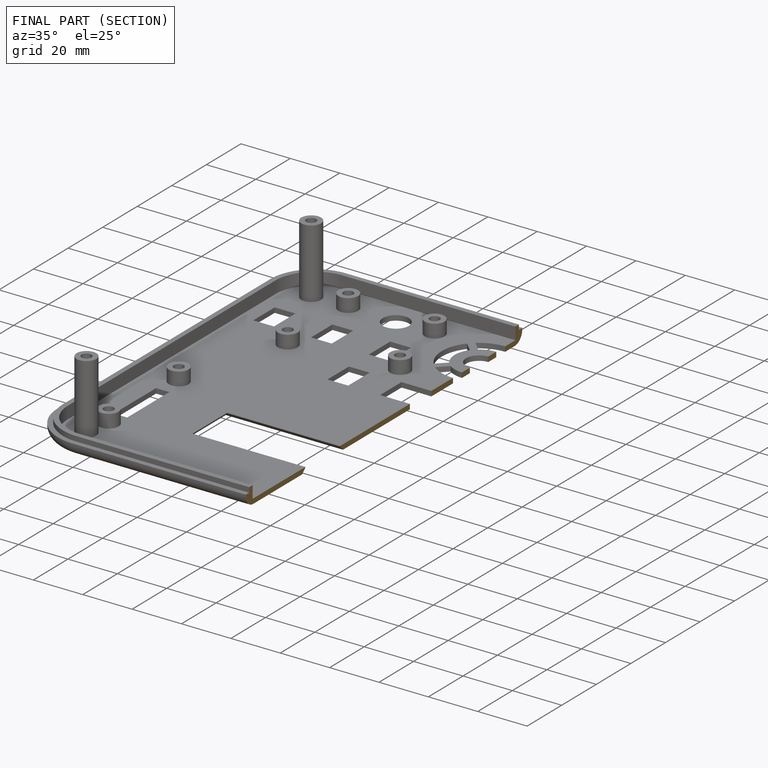
[diagram: finished part — half-section view (interior)]
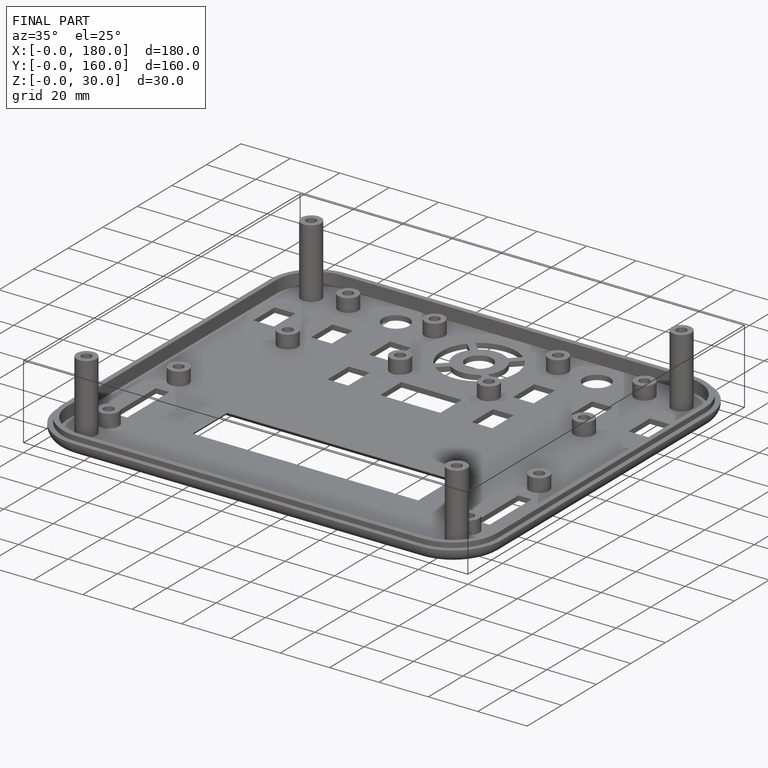
[diagram: finished part — iso view with bounding-box wireframe]
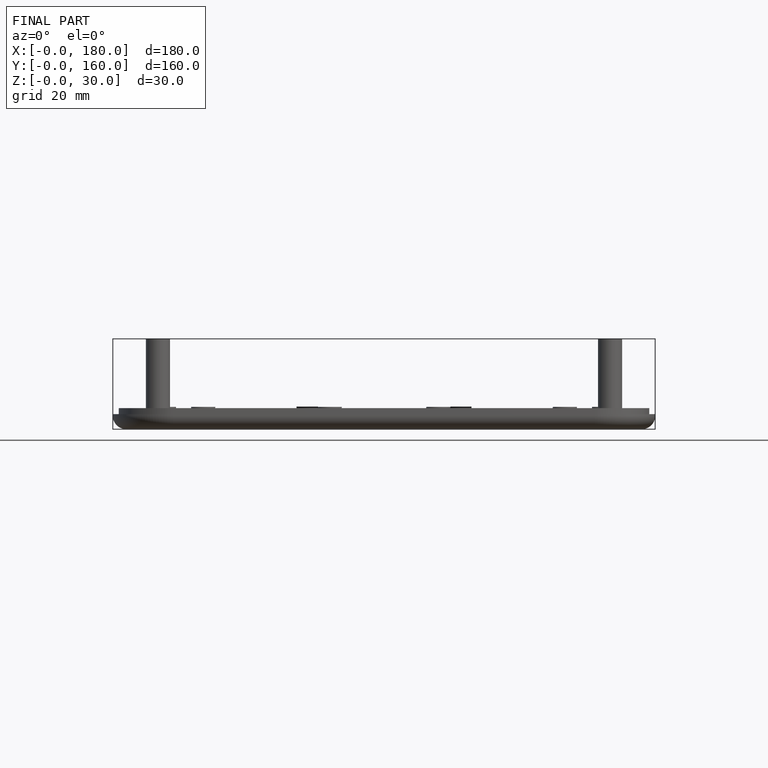
[diagram: finished part — front view with bounding-box wireframe]
